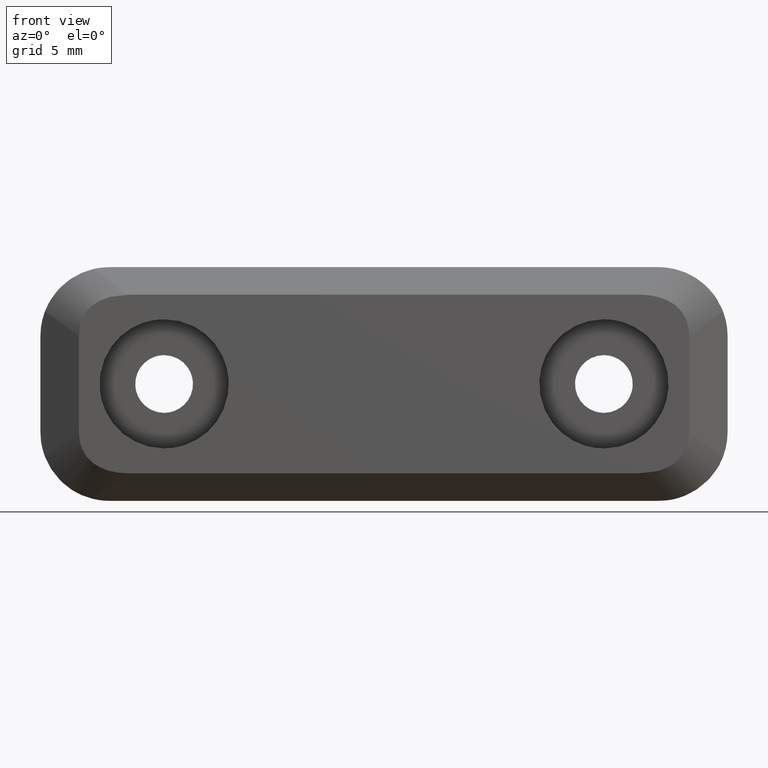
[diagram: clean part render]
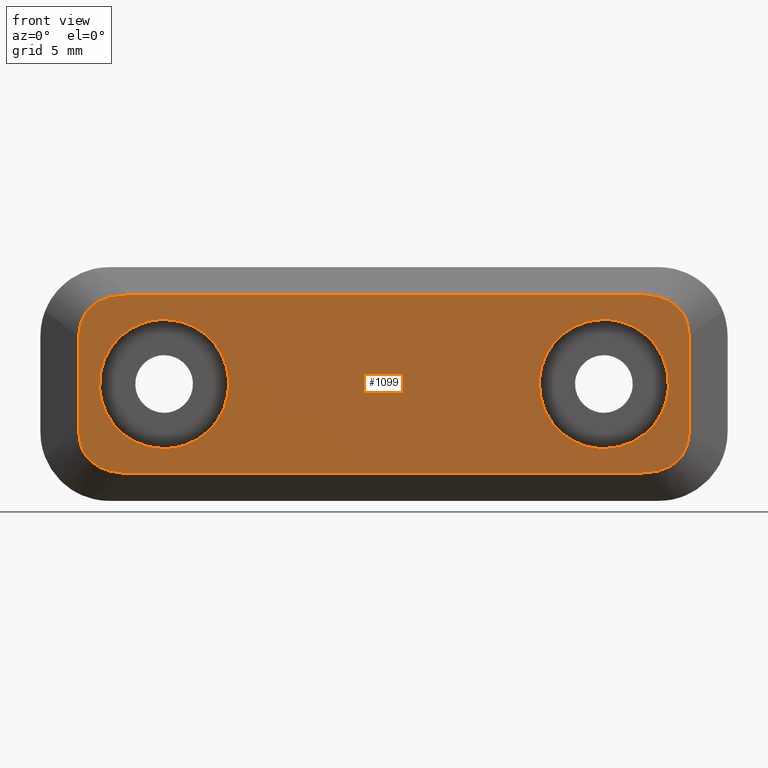
[diagram: same view with one face highlighted and labeled with its STEP entity id]
A machine part, front view. The second image highlights one B-rep face of the part: STEP entity #1099.
In plain terms, the highlighted face is a freeform B-spline surface patch.
Its self-contained STEP definition (entity closure, byte-faithful):
#300=CARTESIAN_POINT('',(-20.685511468543670,-6.599999999999999,-0.368757749946634));
#301=VERTEX_POINT('',#300);
#307=CARTESIAN_POINT('',(-16.0,-6.600000000000000,-4.700000000000000));
#308=VERTEX_POINT('',#307);
#309=CARTESIAN_POINT('',(-16.0,-6.600000000000000,-4.700000000000000));
#310=CARTESIAN_POINT('',(-20.344635310769615,-6.600000000000001,-4.700000000000001));
#311=CARTESIAN_POINT('',(-20.685511468543673,-6.600000000000000,-0.368757749946634));
#319=(BOUNDED_CURVE()B_SPLINE_CURVE(2,(#309,#310,#311),.UNSPECIFIED.,.F.,.U.)B_SPLINE_CURVE_WITH_KNOTS((3,3),(0.0,0.236331300631824),.UNSPECIFIED.)CURVE()GEOMETRIC_REPRESENTATION_ITEM()RATIONAL_B_SPLINE_CURVE((1.0,0.723120658606301,0.969723356169848))REPRESENTATION_ITEM(''));
#320=EDGE_CURVE('',#308,#301,#319,.T.);
#322=CARTESIAN_POINT('',(-11.314488531456330,-6.600000000000000,0.368757749946635));
#323=VERTEX_POINT('',#322);
#324=CARTESIAN_POINT('',(-11.314488531456329,-6.599999999999999,0.368757749946635));
#325=CARTESIAN_POINT('',(-11.300000000000006,-6.600000000000000,0.184663502948989));
#326=CARTESIAN_POINT('',(-11.300000000000001,-6.600000000000000,0.0));
#327=CARTESIAN_POINT('',(-11.300000000000001,-6.600000000000001,-4.700000000000000));
#328=CARTESIAN_POINT('',(-16.0,-6.600000000000000,-4.700000000000000));
#336=(BOUNDED_CURVE()B_SPLINE_CURVE(2,(#324,#325,#326,#327,#328),.UNSPECIFIED.,.F.,.U.)B_SPLINE_CURVE_WITH_KNOTS((3,2,3),(0.736331300631824,0.750000000000000,1.0),.UNSPECIFIED.)CURVE()GEOMETRIC_REPRESENTATION_ITEM()RATIONAL_B_SPLINE_CURVE((0.969723356169848,0.983986122580246,1.0,0.707106781186547,1.0))REPRESENTATION_ITEM(''));
#337=EDGE_CURVE('',#323,#308,#336,.T.);
#369=CARTESIAN_POINT('',(-16.0,-6.600000000000000,4.700000000000000));
#370=VERTEX_POINT('',#369);
#371=CARTESIAN_POINT('',(-16.0,-6.600000000000000,4.700000000000000));
#372=CARTESIAN_POINT('',(-11.655364689230392,-6.600000000000000,4.700000000000000));
#373=CARTESIAN_POINT('',(-11.314488531456329,-6.599999999999999,0.368757749946635));
#381=(BOUNDED_CURVE()B_SPLINE_CURVE(2,(#371,#372,#373),.UNSPECIFIED.,.F.,.U.)B_SPLINE_CURVE_WITH_KNOTS((3,3),(0.500000000000000,0.736331300631824),.UNSPECIFIED.)CURVE()GEOMETRIC_REPRESENTATION_ITEM()RATIONAL_B_SPLINE_CURVE((1.0,0.723120658606301,0.969723356169848))REPRESENTATION_ITEM(''));
#382=EDGE_CURVE('',#370,#323,#381,.T.);
#384=CARTESIAN_POINT('',(-20.685511468543673,-6.600000000000000,-0.368757749946634));
#385=CARTESIAN_POINT('',(-20.699999999999996,-6.600000000000000,-0.184663502948988));
#386=CARTESIAN_POINT('',(-20.699999999999999,-6.600000000000000,0.0));
#387=CARTESIAN_POINT('',(-20.699999999999996,-6.600000000000001,4.700000000000000));
#388=CARTESIAN_POINT('',(-16.0,-6.600000000000000,4.700000000000000));
#396=(BOUNDED_CURVE()B_SPLINE_CURVE(2,(#384,#385,#386,#387,#388),.UNSPECIFIED.,.F.,.U.)B_SPLINE_CURVE_WITH_KNOTS((3,2,3),(0.236331300631824,0.250000000000000,0.500000000000000),.UNSPECIFIED.)CURVE()GEOMETRIC_REPRESENTATION_ITEM()RATIONAL_B_SPLINE_CURVE((0.969723356169848,0.983986122580247,1.0,0.707106781186547,1.0))REPRESENTATION_ITEM(''));
#397=EDGE_CURVE('',#301,#370,#396,.T.);
#544=CARTESIAN_POINT('',(20.691233552581039,-6.600000000000000,-0.286928135842115));
#545=VERTEX_POINT('',#544);
#551=CARTESIAN_POINT('',(16.0,-6.600000000000000,4.700000000000000));
#552=VERTEX_POINT('',#551);
#553=CARTESIAN_POINT('',(20.691233552581046,-6.599999999999999,-0.286928135842115));
#554=CARTESIAN_POINT('',(20.699999999999996,-6.600000000000000,-0.143597987517551));
#555=CARTESIAN_POINT('',(20.699999999999999,-6.600000000000000,0.0));
#556=CARTESIAN_POINT('',(20.699999999999996,-6.600000000000001,4.700000000000000));
#557=CARTESIAN_POINT('',(16.0,-6.600000000000000,4.700000000000000));
#565=(BOUNDED_CURVE()B_SPLINE_CURVE(2,(#553,#554,#555,#556,#557),.UNSPECIFIED.,.F.,.U.)B_SPLINE_CURVE_WITH_KNOTS((3,2,3),(0.239332962240928,0.250000000000000,0.500000000000000),.UNSPECIFIED.)CURVE()GEOMETRIC_REPRESENTATION_ITEM()RATIONAL_B_SPLINE_CURVE((0.976072041670972,0.987502787902163,1.0,0.707106781186547,1.0))REPRESENTATION_ITEM(''));
#566=EDGE_CURVE('',#545,#552,#565,.T.);
#568=CARTESIAN_POINT('',(11.308766447418961,-6.600000000000000,0.286928135842114));
#569=VERTEX_POINT('',#568);
#570=CARTESIAN_POINT('',(16.0,-6.600000000000000,4.700000000000000));
#571=CARTESIAN_POINT('',(11.578681485569943,-6.599999999999999,4.700000000000001));
#572=CARTESIAN_POINT('',(11.308766447418961,-6.600000000000001,0.286928135842113));
#580=(BOUNDED_CURVE()B_SPLINE_CURVE(2,(#570,#571,#572),.UNSPECIFIED.,.F.,.U.)B_SPLINE_CURVE_WITH_KNOTS((3,3),(0.500000000000000,0.739332962240928),.UNSPECIFIED.)CURVE()GEOMETRIC_REPRESENTATION_ITEM()RATIONAL_B_SPLINE_CURVE((1.0,0.719603993284385,0.976072041670972))REPRESENTATION_ITEM(''));
#581=EDGE_CURVE('',#552,#569,#580,.T.);
#613=CARTESIAN_POINT('',(16.0,-6.600000000000000,-4.700000000000000));
#614=VERTEX_POINT('',#613);
#615=CARTESIAN_POINT('',(11.308766447418961,-6.600000000000001,0.286928135842113));
#616=CARTESIAN_POINT('',(11.299999999999999,-6.600000000000001,0.143597987517550));
#617=CARTESIAN_POINT('',(11.300000000000001,-6.600000000000000,0.0));
#618=CARTESIAN_POINT('',(11.300000000000001,-6.600000000000001,-4.700000000000000));
#619=CARTESIAN_POINT('',(16.0,-6.600000000000000,-4.700000000000000));
#627=(BOUNDED_CURVE()B_SPLINE_CURVE(2,(#615,#616,#617,#618,#619),.UNSPECIFIED.,.F.,.U.)B_SPLINE_CURVE_WITH_KNOTS((3,2,3),(0.739332962240928,0.750000000000000,1.0),.UNSPECIFIED.)CURVE()GEOMETRIC_REPRESENTATION_ITEM()RATIONAL_B_SPLINE_CURVE((0.976072041670972,0.987502787902163,1.0,0.707106781186547,1.0))REPRESENTATION_ITEM(''));
#628=EDGE_CURVE('',#569,#614,#627,.T.);
#630=CARTESIAN_POINT('',(16.0,-6.600000000000000,-4.700000000000000));
#631=CARTESIAN_POINT('',(20.421318514430066,-6.600000000000001,-4.700000000000001));
#632=CARTESIAN_POINT('',(20.691233552581046,-6.599999999999999,-0.286928135842115));
#640=(BOUNDED_CURVE()B_SPLINE_CURVE(2,(#630,#631,#632),.UNSPECIFIED.,.F.,.U.)B_SPLINE_CURVE_WITH_KNOTS((3,3),(0.0,0.239332962240928),.UNSPECIFIED.)CURVE()GEOMETRIC_REPRESENTATION_ITEM()RATIONAL_B_SPLINE_CURVE((1.0,0.719603993284385,0.976072041670972))REPRESENTATION_ITEM(''));
#641=EDGE_CURVE('',#614,#545,#640,.T.);
#783=CARTESIAN_POINT('',(-18.547422201250399,-6.600000000000000,6.500000000000110));
#784=VERTEX_POINT('',#783);
#785=CARTESIAN_POINT('',(-22.199999999986950,-6.600000000000000,3.497599544169730));
#786=VERTEX_POINT('',#785);
#787=CARTESIAN_POINT('',(-18.547422201250409,-6.600000000000000,6.500000000000119));
#788=CARTESIAN_POINT('',(-22.199999999985504,-6.600000000000000,6.500000000000117));
#789=CARTESIAN_POINT('',(-22.199999999986929,-6.600000000000000,3.497599544169711));
#797=(BOUNDED_CURVE()B_SPLINE_CURVE(2,(#787,#788,#789),.UNSPECIFIED.,.F.,.U.)CURVE()GEOMETRIC_REPRESENTATION_ITEM()QUASI_UNIFORM_CURVE()RATIONAL_B_SPLINE_CURVE((1.0,0.887523649140955,1.0))REPRESENTATION_ITEM(''));
#798=EDGE_CURVE('',#784,#786,#797,.T.);
#889=CARTESIAN_POINT('',(-22.199999999990251,-6.600000000000000,-3.497599544166605));
#890=VERTEX_POINT('',#889);
#896=CARTESIAN_POINT('',(-22.199999999986950,-6.600000000000000,3.497599544169730));
#897=CARTESIAN_POINT('',(-22.199999999990251,-6.600000000000000,-3.497599544166605));
#898=QUASI_UNIFORM_CURVE('',1,(#896,#897),.UNSPECIFIED.,.F.,.U.);
#899=EDGE_CURVE('',#786,#890,#898,.T.);
#909=CARTESIAN_POINT('',(18.547422201251099,-6.600000000000000,6.500000000000110));
#910=VERTEX_POINT('',#909);
#911=CARTESIAN_POINT('',(18.547422201251099,-6.600000000000000,6.500000000000110));
#912=CARTESIAN_POINT('',(-18.547422201250399,-6.600000000000000,6.500000000000110));
#913=QUASI_UNIFORM_CURVE('',1,(#911,#912),.UNSPECIFIED.,.F.,.U.);
#914=EDGE_CURVE('',#910,#784,#913,.T.);
#991=CARTESIAN_POINT('',(18.547422201252601,-6.600000000000000,-6.499999999999770));
#992=VERTEX_POINT('',#991);
#998=CARTESIAN_POINT('',(-18.547422201253251,-6.600000000000000,-6.499999999999770));
#999=VERTEX_POINT('',#998);
#1000=CARTESIAN_POINT('',(-18.547422201253251,-6.600000000000000,-6.499999999999770));
#1001=CARTESIAN_POINT('',(18.547422201252601,-6.600000000000000,-6.499999999999770));
#1002=QUASI_UNIFORM_CURVE('',1,(#1000,#1001),.UNSPECIFIED.,.F.,.U.);
#1003=EDGE_CURVE('',#999,#992,#1002,.T.);
#1028=CARTESIAN_POINT('',(-24.417779913933419,-6.600000000000000,7.149349974803582));
#1029=CARTESIAN_POINT('',(24.417781104833470,-6.600000000000000,7.149349974803582));
#1030=CARTESIAN_POINT('',(-24.417779913933419,-6.600000000000000,-7.149350323490414));
#1031=CARTESIAN_POINT('',(24.417781104833470,-6.600000000000000,-7.149350323490414));
#1032=B_SPLINE_SURFACE_WITH_KNOTS('',1,1,((#1028,#1030),(#1029,#1031)),.UNSPECIFIED.,.F.,.F.,.U.,(2,2),(2,2),(0.0,48.835561018766903),(0.0,14.298700298293999),.UNSPECIFIED.);
#1033=ORIENTED_EDGE('',*,*,#1003,.T.);
#1034=CARTESIAN_POINT('',(22.199999999989501,-6.600000000000000,-3.497599544167255));
#1035=VERTEX_POINT('',#1034);
#1036=CARTESIAN_POINT('',(18.547422201252601,-6.600000000000000,-6.499999999999772));
#1037=CARTESIAN_POINT('',(22.199999999990279,-6.600000000000000,-6.499999999999771));
#1038=CARTESIAN_POINT('',(22.199999999989512,-6.600000000000000,-3.497599544167243));
#1046=(BOUNDED_CURVE()B_SPLINE_CURVE(2,(#1036,#1037,#1038),.UNSPECIFIED.,.F.,.U.)CURVE()GEOMETRIC_REPRESENTATION_ITEM()QUASI_UNIFORM_CURVE()RATIONAL_B_SPLINE_CURVE((1.0,0.887523649140870,1.0))REPRESENTATION_ITEM(''));
#1047=EDGE_CURVE('',#992,#1035,#1046,.T.);
#1048=ORIENTED_EDGE('',*,*,#1047,.T.);
#1049=CARTESIAN_POINT('',(22.199999999987700,-6.600000000000000,3.497599544169086));
#1050=VERTEX_POINT('',#1049);
#1051=CARTESIAN_POINT('',(22.199999999989501,-6.600000000000000,-3.497599544167255));
#1052=CARTESIAN_POINT('',(22.199999999987700,-6.600000000000000,3.497599544169086));
#1053=QUASI_UNIFORM_CURVE('',1,(#1051,#1052),.UNSPECIFIED.,.F.,.U.);
#1054=EDGE_CURVE('',#1035,#1050,#1053,.T.);
#1055=ORIENTED_EDGE('',*,*,#1054,.T.);
#1056=CARTESIAN_POINT('',(22.199999999987700,-6.600000000000000,3.497599544169086));
#1057=CARTESIAN_POINT('',(22.199999999986936,-6.600000000000000,6.500000000000100));
#1058=CARTESIAN_POINT('',(18.547422201251099,-6.600000000000000,6.500000000000116));
#1066=(BOUNDED_CURVE()B_SPLINE_CURVE(2,(#1056,#1057,#1058),.UNSPECIFIED.,.F.,.U.)CURVE()GEOMETRIC_REPRESENTATION_ITEM()QUASI_UNIFORM_CURVE()RATIONAL_B_SPLINE_CURVE((1.0,0.887523649140931,1.0))REPRESENTATION_ITEM(''));
#1067=EDGE_CURVE('',#1050,#910,#1066,.T.);
#1068=ORIENTED_EDGE('',*,*,#1067,.T.);
#1069=ORIENTED_EDGE('',*,*,#914,.T.);
#1070=ORIENTED_EDGE('',*,*,#798,.T.);
#1071=ORIENTED_EDGE('',*,*,#899,.T.);
#1072=CARTESIAN_POINT('',(-22.199999999990279,-6.600000000000000,-3.497599544166622));
#1073=CARTESIAN_POINT('',(-22.199999999991707,-6.600000000000000,-6.499999999999779));
#1074=CARTESIAN_POINT('',(-18.547422201253251,-6.600000000000000,-6.499999999999779));
#1082=(BOUNDED_CURVE()B_SPLINE_CURVE(2,(#1072,#1073,#1074),.UNSPECIFIED.,.F.,.U.)CURVE()GEOMETRIC_REPRESENTATION_ITEM()QUASI_UNIFORM_CURVE()RATIONAL_B_SPLINE_CURVE((1.0,0.887523649140845,1.0))REPRESENTATION_ITEM(''));
#1083=EDGE_CURVE('',#890,#999,#1082,.T.);
#1084=ORIENTED_EDGE('',*,*,#1083,.T.);
#1085=EDGE_LOOP('',(#1033,#1048,#1055,#1068,#1069,#1070,#1071,#1084));
#1086=FACE_OUTER_BOUND('',#1085,.T.);
#1087=ORIENTED_EDGE('',*,*,#581,.F.);
#1088=ORIENTED_EDGE('',*,*,#566,.F.);
#1089=ORIENTED_EDGE('',*,*,#641,.F.);
#1090=ORIENTED_EDGE('',*,*,#628,.F.);
#1091=EDGE_LOOP('',(#1087,#1088,#1089,#1090));
#1092=FACE_BOUND('',#1091,.T.);
#1093=ORIENTED_EDGE('',*,*,#382,.T.);
#1094=ORIENTED_EDGE('',*,*,#337,.T.);
#1095=ORIENTED_EDGE('',*,*,#320,.T.);
#1096=ORIENTED_EDGE('',*,*,#397,.T.);
#1097=EDGE_LOOP('',(#1093,#1094,#1095,#1096));
#1098=FACE_BOUND('',#1097,.T.);
#1099=ADVANCED_FACE('',(#1086,#1092,#1098),#1032,.F.);